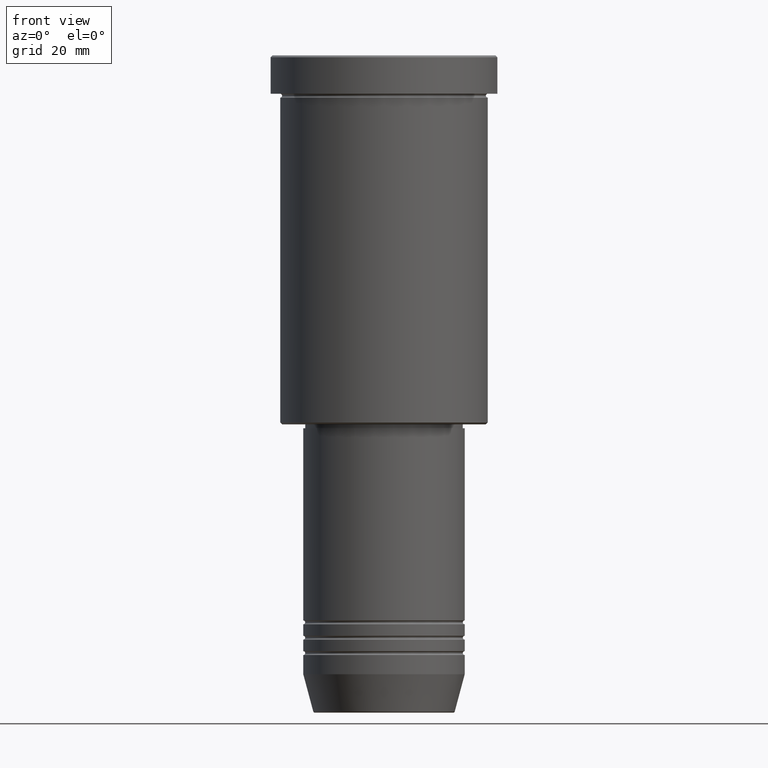
[diagram: clean part render]
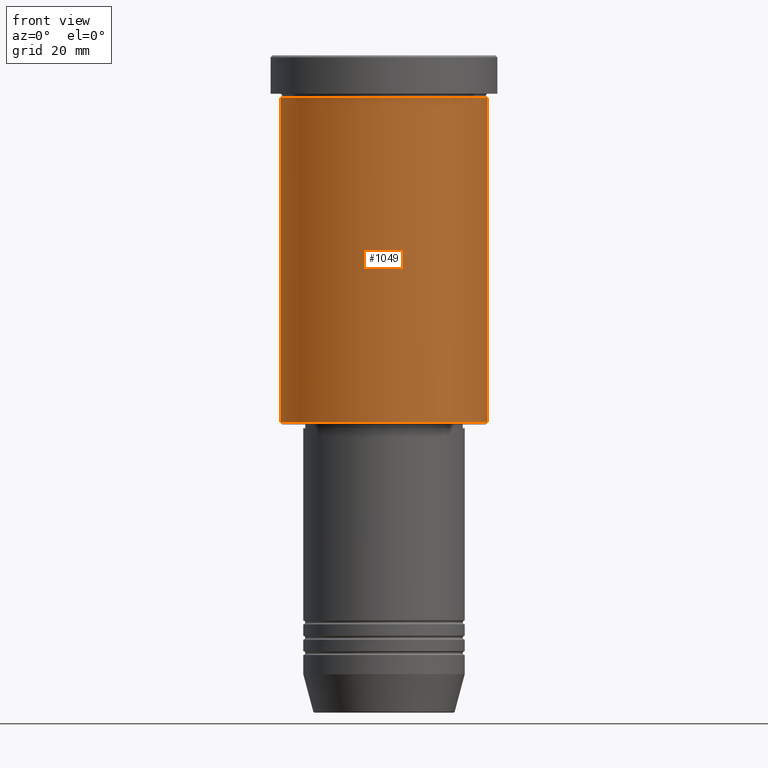
[diagram: same view with one face highlighted and labeled with its STEP entity id]
A machine part, front view. The second image highlights one B-rep face of the part: STEP entity #1049.
In plain terms, the highlighted cylindrical surface (partial cylindrical patch) has radius 27 mm, axis along (-0, -0, 1).
Its self-contained STEP definition (entity closure, byte-faithful):
#51 = CARTESIAN_POINT ( 'NONE',  ( 0.000000000000000000, 0.000000000000000000, -10.99999999999999289 ) ) ;
#56 = DIRECTION ( 'NONE',  ( 1.000000000000000000, 0.000000000000000000, 0.000000000000000000 ) ) ;
#69 = CARTESIAN_POINT ( 'NONE',  ( -27.00000000000000355, 3.306546357697854128E-15, -10.99999999999999289 ) ) ;
#71 = CARTESIAN_POINT ( 'NONE',  ( 27.00000000000000355, 0.000000000000000000, -95.49999999999995737 ) ) ;
#81 = ORIENTED_EDGE ( 'NONE', *, *, #526, .T. ) ;
#124 = ORIENTED_EDGE ( 'NONE', *, *, #599, .F. ) ;
#161 = DIRECTION ( 'NONE',  ( -0.000000000000000000, -0.000000000000000000, 1.000000000000000000 ) ) ;
#228 = CARTESIAN_POINT ( 'NONE',  ( 27.00000000000000355, 0.000000000000000000, -10.99999999999999289 ) ) ;
#234 = LINE ( 'NONE', #524, #633 ) ;
#345 = AXIS2_PLACEMENT_3D ( 'NONE', #763, #1148, #56 ) ;
#363 = EDGE_CURVE ( 'NONE', #778, #969, #767, .T. ) ;
#414 = AXIS2_PLACEMENT_3D ( 'NONE', #717, #919, #1099 ) ;
#476 = VERTEX_POINT ( 'NONE', #71 ) ;
#513 = CARTESIAN_POINT ( 'NONE',  ( -27.00000000000000355, 3.306546357697854128E-15, -95.49999999999995737 ) ) ;
#524 = CARTESIAN_POINT ( 'NONE',  ( 27.00000000000000355, 0.000000000000000000, 0.000000000000000000 ) ) ;
#526 = EDGE_CURVE ( 'NONE', #476, #969, #234, .T. ) ;
#560 = VERTEX_POINT ( 'NONE', #513 ) ;
#561 = CIRCLE ( 'NONE', #414, 27.00000000000000355 ) ;
#599 = EDGE_CURVE ( 'NONE', #560, #778, #1113, .T. ) ;
#633 = VECTOR ( 'NONE', #161, 1000.000000000000000 ) ;
#659 = EDGE_CURVE ( 'NONE', #560, #476, #561, .T. ) ;
#689 = AXIS2_PLACEMENT_3D ( 'NONE', #51, #956, #941 ) ;
#717 = CARTESIAN_POINT ( 'NONE',  ( 0.000000000000000000, 0.000000000000000000, -95.49999999999995737 ) ) ;
#763 = CARTESIAN_POINT ( 'NONE',  ( 0.000000000000000000, 0.000000000000000000, 0.000000000000000000 ) ) ;
#767 = CIRCLE ( 'NONE', #689, 27.00000000000000355 ) ;
#778 = VERTEX_POINT ( 'NONE', #69 ) ;
#806 = EDGE_LOOP ( 'NONE', ( #124, #1004, #81, #809 ) ) ;
#809 = ORIENTED_EDGE ( 'NONE', *, *, #363, .F. ) ;
#824 = VECTOR ( 'NONE', #902, 1000.000000000000000 ) ;
#842 = CYLINDRICAL_SURFACE ( 'NONE', #345, 27.00000000000000355 ) ;
#902 = DIRECTION ( 'NONE',  ( -0.000000000000000000, -0.000000000000000000, 1.000000000000000000 ) ) ;
#919 = DIRECTION ( 'NONE',  ( -0.000000000000000000, -0.000000000000000000, 1.000000000000000000 ) ) ;
#941 = DIRECTION ( 'NONE',  ( 1.000000000000000000, 0.000000000000000000, 0.000000000000000000 ) ) ;
#956 = DIRECTION ( 'NONE',  ( -0.000000000000000000, -0.000000000000000000, 1.000000000000000000 ) ) ;
#969 = VERTEX_POINT ( 'NONE', #228 ) ;
#1004 = ORIENTED_EDGE ( 'NONE', *, *, #659, .T. ) ;
#1023 = CARTESIAN_POINT ( 'NONE',  ( -27.00000000000000355, 3.306546357697854128E-15, 0.000000000000000000 ) ) ;
#1049 = ADVANCED_FACE ( 'NONE', ( #1131 ), #842, .T. ) ;
#1099 = DIRECTION ( 'NONE',  ( -1.000000000000000000, 0.000000000000000000, 0.000000000000000000 ) ) ;
#1113 = LINE ( 'NONE', #1023, #824 ) ;
#1131 = FACE_OUTER_BOUND ( 'NONE', #806, .T. ) ;
#1148 = DIRECTION ( 'NONE',  ( -0.000000000000000000, -0.000000000000000000, 1.000000000000000000 ) ) ;